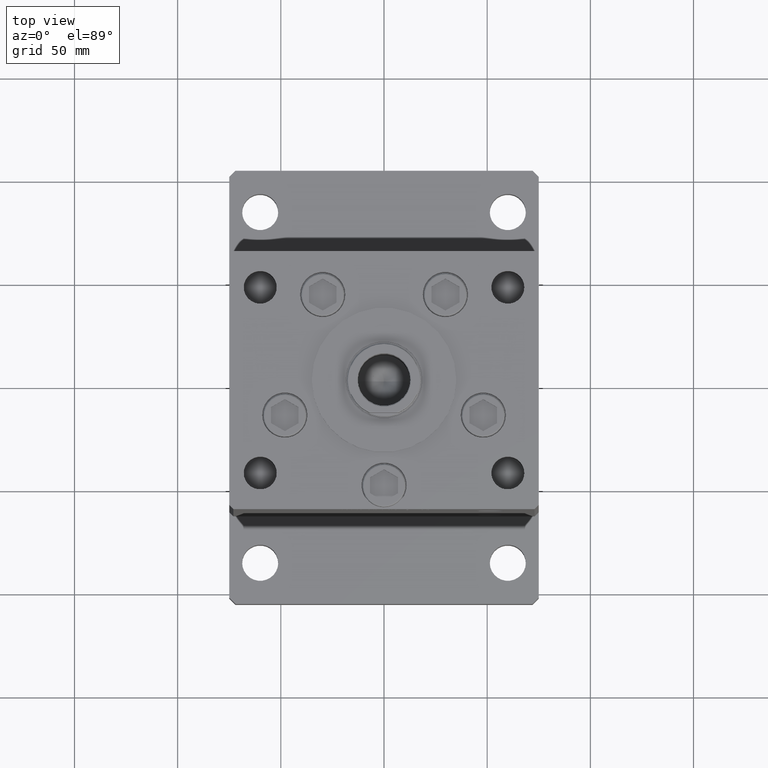
[diagram: clean part render]
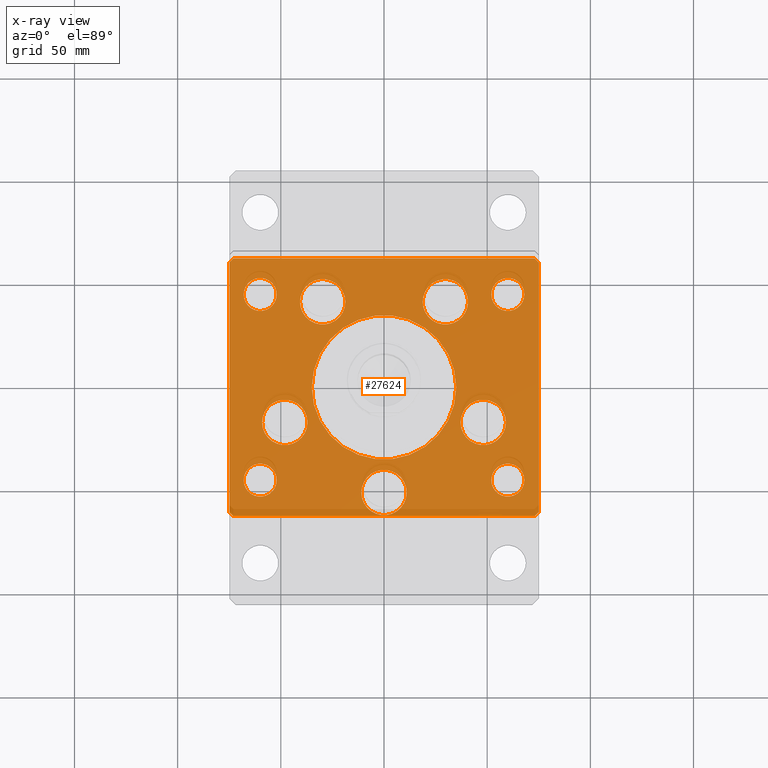
[diagram: x-ray — body ghosted, one internal face saturated and labeled with its STEP entity id]
A machine part, top view, then the same camera in x-ray: the body is ghosted and one INTERNAL B-rep face — a face not visible from any outside direction — is saturated and labeled: STEP entity #27624.
In plain terms, the highlighted planar face has unit normal (0, 0, -1).
Its self-contained STEP definition (entity closure, byte-faithful):
#9 = CARTESIAN_POINT ( 'NONE',  ( 74.99999999999992895, 60.50000000000002842, 0.000000000000000000 ) ) ;
#86 = EDGE_CURVE ( 'NONE', #8940, #32262, #29448, .T. ) ;
#288 = DIRECTION ( 'NONE',  ( 0.000000000000000000, -1.000000000000000000, 0.000000000000000000 ) ) ;
#441 = AXIS2_PLACEMENT_3D ( 'NONE', #41376, #50024, #33759 ) ;
#675 = DIRECTION ( 'NONE',  ( -0.000000000000000000, 0.000000000000000000, 1.000000000000000000 ) ) ;
#1005 = CIRCLE ( 'NONE', #24294, 10.99999999999999645 ) ;
#1025 = CARTESIAN_POINT ( 'NONE',  ( -29.73102073172060500, 41.43749999999998579, 0.000000000000000000 ) ) ;
#1263 = ORIENTED_EDGE ( 'NONE', *, *, #33752, .T. ) ;
#1478 = AXIS2_PLACEMENT_3D ( 'NONE', #26942, #23685, #39961 ) ;
#1541 = EDGE_CURVE ( 'NONE', #23959, #45111, #9569, .T. ) ;
#1725 = VERTEX_POINT ( 'NONE', #40187 ) ;
#1927 = VERTEX_POINT ( 'NONE', #18434 ) ;
#1978 = VERTEX_POINT ( 'NONE', #28186 ) ;
#2099 = EDGE_LOOP ( 'NONE', ( #32290, #15191 ) ) ;
#2299 = DIRECTION ( 'NONE',  ( 1.000000000000000000, 0.000000000000000000, 0.000000000000000000 ) ) ;
#2541 = VERTEX_POINT ( 'NONE', #25925 ) ;
#2713 = CARTESIAN_POINT ( 'NONE',  ( 48.08326112068522207, -16.99999999999999645, 0.000000000000000000 ) ) ;
#2765 = FACE_BOUND ( 'NONE', #26842, .T. ) ;
#2953 = ORIENTED_EDGE ( 'NONE', *, *, #24874, .T. ) ;
#3104 = VERTEX_POINT ( 'NONE', #35473 ) ;
#3172 = AXIS2_PLACEMENT_3D ( 'NONE', #43635, #27097, #14344 ) ;
#3273 = DIRECTION ( 'NONE',  ( 1.000000000000000000, 9.505334114941407284E-17, 0.000000000000000000 ) ) ;
#3325 = CARTESIAN_POINT ( 'NONE',  ( -59.99999999999999289, -45.00000000000000000, 0.000000000000000000 ) ) ;
#3358 = DIRECTION ( 'NONE',  ( 1.000000000000000000, 0.000000000000000000, 0.000000000000000000 ) ) ;
#3615 = VERTEX_POINT ( 'NONE', #9 ) ;
#3665 = EDGE_LOOP ( 'NONE', ( #22219, #10344 ) ) ;
#3743 = EDGE_CURVE ( 'NONE', #6756, #22187, #5308, .T. ) ;
#3855 = DIRECTION ( 'NONE',  ( 0.000000000000000000, -0.000000000000000000, -1.000000000000000000 ) ) ;
#4297 = ORIENTED_EDGE ( 'NONE', *, *, #44772, .T. ) ;
#4303 = EDGE_LOOP ( 'NONE', ( #9160, #11617 ) ) ;
#4401 = CARTESIAN_POINT ( 'NONE',  ( -52.00000000000000000, 45.00000000000000000, 0.000000000000000000 ) ) ;
#4786 = EDGE_CURVE ( 'NONE', #18617, #49133, #1005, .T. ) ;
#5157 = EDGE_CURVE ( 'NONE', #49009, #42917, #19090, .T. ) ;
#5308 = CIRCLE ( 'NONE', #11355, 11.00000000000000355 ) ;
#5531 = AXIS2_PLACEMENT_3D ( 'NONE', #2713, #22523, #48007 ) ;
#5624 = AXIS2_PLACEMENT_3D ( 'NONE', #52086, #31222, #35297 ) ;
#6075 = AXIS2_PLACEMENT_3D ( 'NONE', #51979, #47916, #10765 ) ;
#6756 = VERTEX_POINT ( 'NONE', #22951 ) ;
#7235 = CARTESIAN_POINT ( 'NONE',  ( -10.99999999999999289, -51.00000000000000000, 0.000000000000000000 ) ) ;
#7257 = VECTOR ( 'NONE', #43328, 1000.000000000000114 ) ;
#7286 = VERTEX_POINT ( 'NONE', #4401 ) ;
#7301 = DIRECTION ( 'NONE',  ( 0.000000000000000000, -0.000000000000000000, -1.000000000000000000 ) ) ;
#7656 = DIRECTION ( 'NONE',  ( 0.000000000000000000, -0.000000000000000000, -1.000000000000000000 ) ) ;
#7685 = ORIENTED_EDGE ( 'NONE', *, *, #36598, .T. ) ;
#7838 = CARTESIAN_POINT ( 'NONE',  ( 75.00000000000001421, -60.50000000000000711, 0.000000000000000000 ) ) ;
#8182 = DIRECTION ( 'NONE',  ( 1.000000000000000000, 0.000000000000000000, 0.000000000000000000 ) ) ;
#8603 = DIRECTION ( 'NONE',  ( 1.000000000000000000, 0.000000000000000000, 0.000000000000000000 ) ) ;
#8645 = DIRECTION ( 'NONE',  ( 0.7071067811865463515, 0.7071067811865487940, 0.000000000000000000 ) ) ;
#8745 = VERTEX_POINT ( 'NONE', #30051 ) ;
#8940 = VERTEX_POINT ( 'NONE', #26145 ) ;
#9035 = CIRCLE ( 'NONE', #41938, 8.000000000000000000 ) ;
#9160 = ORIENTED_EDGE ( 'NONE', *, *, #10292, .F. ) ;
#9569 = CIRCLE ( 'NONE', #13017, 11.00000000000000000 ) ;
#10217 = ORIENTED_EDGE ( 'NONE', *, *, #19425, .T. ) ;
#10292 = EDGE_CURVE ( 'NONE', #7286, #45808, #50383, .T. ) ;
#10344 = ORIENTED_EDGE ( 'NONE', *, *, #4786, .T. ) ;
#10422 = DIRECTION ( 'NONE',  ( 0.000000000000000000, -0.000000000000000000, -1.000000000000000000 ) ) ;
#10762 = DIRECTION ( 'NONE',  ( 1.000000000000000000, 0.000000000000000000, 0.000000000000000000 ) ) ;
#10765 = DIRECTION ( 'NONE',  ( 1.000000000000000000, 0.000000000000000000, 0.000000000000000000 ) ) ;
#10820 = CIRCLE ( 'NONE', #441, 11.00000000000000355 ) ;
#10949 = EDGE_LOOP ( 'NONE', ( #22753, #10217 ) ) ;
#11065 = CIRCLE ( 'NONE', #24078, 35.00000000000000711 ) ;
#11182 = FACE_OUTER_BOUND ( 'NONE', #14331, .T. ) ;
#11245 = CARTESIAN_POINT ( 'NONE',  ( 68.00000000000000000, -44.99999999999999289, 0.000000000000000000 ) ) ;
#11337 = ORIENTED_EDGE ( 'NONE', *, *, #5157, .F. ) ;
#11355 = AXIS2_PLACEMENT_3D ( 'NONE', #41769, #21170, #37716 ) ;
#11439 = CARTESIAN_POINT ( 'NONE',  ( -73.00000000000001421, 62.49999999999998579, 0.000000000000000000 ) ) ;
#11557 = DIRECTION ( 'NONE',  ( 0.000000000000000000, 0.000000000000000000, 1.000000000000000000 ) ) ;
#11617 = ORIENTED_EDGE ( 'NONE', *, *, #42392, .F. ) ;
#11716 = FACE_BOUND ( 'NONE', #2099, .T. ) ;
#11907 = CIRCLE ( 'NONE', #1478, 35.00000000000000711 ) ;
#12173 = CARTESIAN_POINT ( 'NONE',  ( -51.99999999999999289, -45.00000000000000000, 0.000000000000000000 ) ) ;
#12548 = LINE ( 'NONE', #49952, #21430 ) ;
#12602 = VERTEX_POINT ( 'NONE', #53068 ) ;
#12871 = DIRECTION ( 'NONE',  ( -0.7071067811865451302, -0.7071067811865500152, 0.000000000000000000 ) ) ;
#12981 = EDGE_CURVE ( 'NONE', #32262, #8940, #33180, .T. ) ;
#13017 = AXIS2_PLACEMENT_3D ( 'NONE', #51293, #26635, #14152 ) ;
#13506 = ORIENTED_EDGE ( 'NONE', *, *, #45323, .T. ) ;
#13920 = CARTESIAN_POINT ( 'NONE',  ( -48.08326112068522207, -17.00000000000000711, 0.000000000000000000 ) ) ;
#14016 = CARTESIAN_POINT ( 'NONE',  ( 68.00000000000000000, 44.99999999999999289, 0.000000000000000000 ) ) ;
#14067 = VERTEX_POINT ( 'NONE', #11245 ) ;
#14152 = DIRECTION ( 'NONE',  ( 1.000000000000000000, 0.000000000000000000, 0.000000000000000000 ) ) ;
#14247 = VECTOR ( 'NONE', #3273, 1000.000000000000000 ) ;
#14331 = EDGE_LOOP ( 'NONE', ( #53060, #14519, #2953, #1263, #7685, #50451, #13506, #52334 ) ) ;
#14344 = DIRECTION ( 'NONE',  ( 1.000000000000000000, 0.000000000000000000, 0.000000000000000000 ) ) ;
#14381 = AXIS2_PLACEMENT_3D ( 'NONE', #1025, #51987, #27322 ) ;
#14519 = ORIENTED_EDGE ( 'NONE', *, *, #38395, .T. ) ;
#15191 = ORIENTED_EDGE ( 'NONE', *, *, #31675, .F. ) ;
#15290 = ORIENTED_EDGE ( 'NONE', *, *, #16912, .T. ) ;
#15588 = DIRECTION ( 'NONE',  ( 0.000000000000000000, -0.000000000000000000, -1.000000000000000000 ) ) ;
#15632 = DIRECTION ( 'NONE',  ( 1.000000000000000000, 0.000000000000000000, 0.000000000000000000 ) ) ;
#15914 = CIRCLE ( 'NONE', #23737, 11.00000000000000000 ) ;
#16338 = EDGE_CURVE ( 'NONE', #43621, #1725, #15914, .T. ) ;
#16736 = DIRECTION ( 'NONE',  ( 0.000000000000000000, -0.000000000000000000, -1.000000000000000000 ) ) ;
#16912 = EDGE_CURVE ( 'NONE', #22187, #6756, #48809, .T. ) ;
#17056 = LINE ( 'NONE', #33589, #33402 ) ;
#17059 = ORIENTED_EDGE ( 'NONE', *, *, #12981, .T. ) ;
#17592 = CIRCLE ( 'NONE', #44472, 11.00000000000000000 ) ;
#17751 = CIRCLE ( 'NONE', #5624, 8.000000000000007105 ) ;
#18074 = EDGE_CURVE ( 'NONE', #49133, #18617, #25481, .T. ) ;
#18192 = DIRECTION ( 'NONE',  ( 0.000000000000000000, -0.000000000000000000, -1.000000000000000000 ) ) ;
#18434 = CARTESIAN_POINT ( 'NONE',  ( -73.00000000000001421, -62.50000000000002842, 0.000000000000000000 ) ) ;
#18591 = CARTESIAN_POINT ( 'NONE',  ( 35.00000000000000711, -1.387778780781445676E-14, 0.000000000000000000 ) ) ;
#18617 = VERTEX_POINT ( 'NONE', #35019 ) ;
#18633 = ORIENTED_EDGE ( 'NONE', *, *, #32411, .F. ) ;
#18738 = ORIENTED_EDGE ( 'NONE', *, *, #27182, .T. ) ;
#19090 = CIRCLE ( 'NONE', #6075, 8.000000000000007105 ) ;
#19241 = LINE ( 'NONE', #7838, #47864 ) ;
#19425 = EDGE_CURVE ( 'NONE', #1978, #8745, #19468, .T. ) ;
#19468 = CIRCLE ( 'NONE', #34221, 11.00000000000000355 ) ;
#19621 = CIRCLE ( 'NONE', #14381, 11.00000000000000000 ) ;
#20214 = ORIENTED_EDGE ( 'NONE', *, *, #40318, .T. ) ;
#21008 = CARTESIAN_POINT ( 'NONE',  ( -73.00000000000001421, 62.49999999999998579, 0.000000000000000000 ) ) ;
#21036 = AXIS2_PLACEMENT_3D ( 'NONE', #3325, #3855, #45089 ) ;
#21170 = DIRECTION ( 'NONE',  ( 0.000000000000000000, -0.000000000000000000, -1.000000000000000000 ) ) ;
#21422 = CARTESIAN_POINT ( 'NONE',  ( 73.00000000000001421, -62.50000000000001421, 0.000000000000000000 ) ) ;
#21430 = VECTOR ( 'NONE', #49163, 1000.000000000000000 ) ;
#21486 = VECTOR ( 'NONE', #28425, 1000.000000000000114 ) ;
#22187 = VERTEX_POINT ( 'NONE', #44077 ) ;
#22219 = ORIENTED_EDGE ( 'NONE', *, *, #18074, .T. ) ;
#22523 = DIRECTION ( 'NONE',  ( 0.000000000000000000, -0.000000000000000000, -1.000000000000000000 ) ) ;
#22753 = ORIENTED_EDGE ( 'NONE', *, *, #40680, .T. ) ;
#22951 = CARTESIAN_POINT ( 'NONE',  ( 37.08326112068521496, -16.99999999999999645, 0.000000000000000000 ) ) ;
#23307 = EDGE_LOOP ( 'NONE', ( #52620, #18738 ) ) ;
#23393 = FACE_BOUND ( 'NONE', #10949, .T. ) ;
#23445 = CARTESIAN_POINT ( 'NONE',  ( -59.99999999999999289, -45.00000000000000000, 0.000000000000000000 ) ) ;
#23531 = CARTESIAN_POINT ( 'NONE',  ( 74.99999999999992895, 60.50000000000002842, 0.000000000000000000 ) ) ;
#23655 = FACE_BOUND ( 'NONE', #35768, .T. ) ;
#23685 = DIRECTION ( 'NONE',  ( 0.000000000000000000, 0.000000000000000000, 1.000000000000000000 ) ) ;
#23737 = AXIS2_PLACEMENT_3D ( 'NONE', #38803, #18192, #30665 ) ;
#23784 = DIRECTION ( 'NONE',  ( -0.000000000000000000, 0.000000000000000000, 1.000000000000000000 ) ) ;
#23959 = VERTEX_POINT ( 'NONE', #30604 ) ;
#24078 = AXIS2_PLACEMENT_3D ( 'NONE', #44654, #11557, #15632 ) ;
#24128 = DIRECTION ( 'NONE',  ( -6.881547673296424104E-16, 1.000000000000000000, 0.000000000000000000 ) ) ;
#24202 = FACE_BOUND ( 'NONE', #4303, .T. ) ;
#24294 = AXIS2_PLACEMENT_3D ( 'NONE', #44461, #7301, #27654 ) ;
#24874 = EDGE_CURVE ( 'NONE', #50213, #29350, #17056, .T. ) ;
#25249 = DIRECTION ( 'NONE',  ( -0.000000000000000000, 0.000000000000000000, 1.000000000000000000 ) ) ;
#25371 = DIRECTION ( 'NONE',  ( 1.000000000000000000, 0.000000000000000000, 0.000000000000000000 ) ) ;
#25481 = CIRCLE ( 'NONE', #28065, 10.99999999999999645 ) ;
#25925 = CARTESIAN_POINT ( 'NONE',  ( 72.99999999999992895, 62.50000000000001421, 0.000000000000000000 ) ) ;
#26145 = CARTESIAN_POINT ( 'NONE',  ( -67.99999999999998579, -45.00000000000000000, 0.000000000000000000 ) ) ;
#26635 = DIRECTION ( 'NONE',  ( 0.000000000000000000, -0.000000000000000000, -1.000000000000000000 ) ) ;
#26802 = VERTEX_POINT ( 'NONE', #11439 ) ;
#26834 = EDGE_CURVE ( 'NONE', #3104, #42325, #49648, .T. ) ;
#26842 = EDGE_LOOP ( 'NONE', ( #18633, #11337 ) ) ;
#26942 = CARTESIAN_POINT ( 'NONE',  ( 0.000000000000000000, -1.387778780781445676E-14, 0.000000000000000000 ) ) ;
#27097 = DIRECTION ( 'NONE',  ( -0.000000000000000000, 0.000000000000000000, 1.000000000000000000 ) ) ;
#27182 = EDGE_CURVE ( 'NONE', #45111, #23959, #19621, .T. ) ;
#27322 = DIRECTION ( 'NONE',  ( 1.000000000000000000, 0.000000000000000000, 0.000000000000000000 ) ) ;
#27527 = CARTESIAN_POINT ( 'NONE',  ( 6.245698675651500444E-15, -51.00000000000000000, 0.000000000000000000 ) ) ;
#27624 = ADVANCED_FACE ( 'NONE', ( #11716, #27986, #36674, #28260, #23655, #23393, #2765, #44809, #24202, #11182, #40196 ), #44272, .T. ) ;
#27654 = DIRECTION ( 'NONE',  ( 1.000000000000000000, 0.000000000000000000, 0.000000000000000000 ) ) ;
#27986 = FACE_BOUND ( 'NONE', #23307, .T. ) ;
#28065 = AXIS2_PLACEMENT_3D ( 'NONE', #46292, #16736, #8603 ) ;
#28090 = CARTESIAN_POINT ( 'NONE',  ( 18.73102073172060500, 41.43749999999999289, 0.000000000000000000 ) ) ;
#28186 = CARTESIAN_POINT ( 'NONE',  ( -37.08326112068521496, -17.00000000000000711, 0.000000000000000000 ) ) ;
#28260 = FACE_BOUND ( 'NONE', #53122, .T. ) ;
#28425 = DIRECTION ( 'NONE',  ( 0.7071067811865451302, -0.7071067811865500152, 0.000000000000000000 ) ) ;
#28900 = VERTEX_POINT ( 'NONE', #18591 ) ;
#29350 = VERTEX_POINT ( 'NONE', #33931 ) ;
#29448 = CIRCLE ( 'NONE', #51047, 8.000000000000000000 ) ;
#30051 = CARTESIAN_POINT ( 'NONE',  ( -59.08326112068522207, -17.00000000000000711, 0.000000000000000000 ) ) ;
#30583 = EDGE_CURVE ( 'NONE', #42325, #1927, #48757, .T. ) ;
#30604 = CARTESIAN_POINT ( 'NONE',  ( -40.73102073172060500, 41.43749999999998579, 0.000000000000000000 ) ) ;
#30665 = DIRECTION ( 'NONE',  ( 1.000000000000000000, 0.000000000000000000, 0.000000000000000000 ) ) ;
#30772 = CARTESIAN_POINT ( 'NONE',  ( -75.00000000000001421, -60.50000000000001421, 0.000000000000000000 ) ) ;
#31222 = DIRECTION ( 'NONE',  ( 0.000000000000000000, -0.000000000000000000, -1.000000000000000000 ) ) ;
#31653 = VECTOR ( 'NONE', #12871, 1000.000000000000114 ) ;
#31675 = EDGE_CURVE ( 'NONE', #12602, #28900, #11065, .T. ) ;
#32262 = VERTEX_POINT ( 'NONE', #12173 ) ;
#32290 = ORIENTED_EDGE ( 'NONE', *, *, #50538, .F. ) ;
#32411 = EDGE_CURVE ( 'NONE', #42917, #49009, #33633, .T. ) ;
#33180 = CIRCLE ( 'NONE', #21036, 8.000000000000000000 ) ;
#33402 = VECTOR ( 'NONE', #8645, 1000.000000000000000 ) ;
#33501 = CARTESIAN_POINT ( 'NONE',  ( -60.00000000000000000, 45.00000000000000000, 0.000000000000000000 ) ) ;
#33589 = CARTESIAN_POINT ( 'NONE',  ( 73.00000000000001421, -62.50000000000001421, 0.000000000000000000 ) ) ;
#33626 = ORIENTED_EDGE ( 'NONE', *, *, #86, .T. ) ;
#33633 = CIRCLE ( 'NONE', #39670, 8.000000000000007105 ) ;
#33752 = EDGE_CURVE ( 'NONE', #29350, #3615, #19241, .T. ) ;
#33759 = DIRECTION ( 'NONE',  ( 1.000000000000000000, 0.000000000000000000, 0.000000000000000000 ) ) ;
#33931 = CARTESIAN_POINT ( 'NONE',  ( 75.00000000000001421, -60.50000000000000711, 0.000000000000000000 ) ) ;
#34221 = AXIS2_PLACEMENT_3D ( 'NONE', #13920, #51606, #42949 ) ;
#34391 = ORIENTED_EDGE ( 'NONE', *, *, #16338, .T. ) ;
#35019 = CARTESIAN_POINT ( 'NONE',  ( 40.73102073172059079, 41.43749999999999289, 0.000000000000000000 ) ) ;
#35286 = EDGE_CURVE ( 'NONE', #1725, #43621, #17592, .T. ) ;
#35297 = DIRECTION ( 'NONE',  ( 1.000000000000000000, 0.000000000000000000, 0.000000000000000000 ) ) ;
#35473 = CARTESIAN_POINT ( 'NONE',  ( -75.00000000000001421, 60.49999999999997158, 0.000000000000000000 ) ) ;
#35750 = CARTESIAN_POINT ( 'NONE',  ( 51.99999999999999289, -44.99999999999999289, 0.000000000000000000 ) ) ;
#35768 = EDGE_LOOP ( 'NONE', ( #34391, #52836 ) ) ;
#36598 = EDGE_CURVE ( 'NONE', #3615, #2541, #43879, .T. ) ;
#36674 = FACE_BOUND ( 'NONE', #3665, .T. ) ;
#36957 = CARTESIAN_POINT ( 'NONE',  ( 60.00000000000000000, -44.99999999999999289, 0.000000000000000000 ) ) ;
#37590 = VERTEX_POINT ( 'NONE', #35750 ) ;
#37716 = DIRECTION ( 'NONE',  ( 1.000000000000000000, 0.000000000000000000, 0.000000000000000000 ) ) ;
#38025 = CARTESIAN_POINT ( 'NONE',  ( -67.99999999999998579, 45.00000000000000000, 0.000000000000000000 ) ) ;
#38232 = ORIENTED_EDGE ( 'NONE', *, *, #3743, .T. ) ;
#38395 = EDGE_CURVE ( 'NONE', #1927, #50213, #44233, .T. ) ;
#38803 = CARTESIAN_POINT ( 'NONE',  ( 6.245698675651500444E-15, -51.00000000000000000, 0.000000000000000000 ) ) ;
#39670 = AXIS2_PLACEMENT_3D ( 'NONE', #47914, #23784, #10762 ) ;
#39961 = DIRECTION ( 'NONE',  ( 1.000000000000000000, 0.000000000000000000, 0.000000000000000000 ) ) ;
#40187 = CARTESIAN_POINT ( 'NONE',  ( 11.00000000000000711, -51.00000000000000000, 0.000000000000000000 ) ) ;
#40196 = FACE_BOUND ( 'NONE', #40556, .T. ) ;
#40318 = EDGE_CURVE ( 'NONE', #14067, #37590, #17751, .T. ) ;
#40556 = EDGE_LOOP ( 'NONE', ( #17059, #33626 ) ) ;
#40680 = EDGE_CURVE ( 'NONE', #8745, #1978, #10820, .T. ) ;
#40784 = CARTESIAN_POINT ( 'NONE',  ( -60.00000000000000000, 45.00000000000000000, 0.000000000000000000 ) ) ;
#41170 = AXIS2_PLACEMENT_3D ( 'NONE', #36957, #7656, #8182 ) ;
#41376 = CARTESIAN_POINT ( 'NONE',  ( -48.08326112068522207, -17.00000000000000711, 0.000000000000000000 ) ) ;
#41769 = CARTESIAN_POINT ( 'NONE',  ( 48.08326112068522207, -16.99999999999999645, 0.000000000000000000 ) ) ;
#41938 = AXIS2_PLACEMENT_3D ( 'NONE', #40784, #25249, #3358 ) ;
#42325 = VERTEX_POINT ( 'NONE', #30772 ) ;
#42392 = EDGE_CURVE ( 'NONE', #45808, #7286, #9035, .T. ) ;
#42917 = VERTEX_POINT ( 'NONE', #14016 ) ;
#42949 = DIRECTION ( 'NONE',  ( 1.000000000000000000, 0.000000000000000000, 0.000000000000000000 ) ) ;
#43328 = DIRECTION ( 'NONE',  ( -0.7071067811865500152, 0.7071067811865451302, 0.000000000000000000 ) ) ;
#43621 = VERTEX_POINT ( 'NONE', #7235 ) ;
#43635 = CARTESIAN_POINT ( 'NONE',  ( 0.000000000000000000, 0.000000000000000000, 0.000000000000000000 ) ) ;
#43879 = LINE ( 'NONE', #23531, #7257 ) ;
#44077 = CARTESIAN_POINT ( 'NONE',  ( 59.08326112068522207, -16.99999999999999645, 0.000000000000000000 ) ) ;
#44233 = LINE ( 'NONE', #48817, #14247 ) ;
#44272 = PLANE ( 'NONE',  #3172 ) ;
#44461 = CARTESIAN_POINT ( 'NONE',  ( 29.73102073172059789, 41.43749999999999289, 0.000000000000000000 ) ) ;
#44472 = AXIS2_PLACEMENT_3D ( 'NONE', #27527, #15588, #2299 ) ;
#44654 = CARTESIAN_POINT ( 'NONE',  ( 0.000000000000000000, -1.387778780781445676E-14, 0.000000000000000000 ) ) ;
#44708 = CARTESIAN_POINT ( 'NONE',  ( -75.00000000000001421, -60.50000000000001421, 0.000000000000000000 ) ) ;
#44772 = EDGE_CURVE ( 'NONE', #37590, #14067, #46358, .T. ) ;
#44809 = FACE_BOUND ( 'NONE', #47437, .T. ) ;
#45070 = CARTESIAN_POINT ( 'NONE',  ( -75.00000000000001421, 60.49999999999997158, 0.000000000000000000 ) ) ;
#45089 = DIRECTION ( 'NONE',  ( 1.000000000000000000, 0.000000000000000000, 0.000000000000000000 ) ) ;
#45111 = VERTEX_POINT ( 'NONE', #49605 ) ;
#45323 = EDGE_CURVE ( 'NONE', #26802, #3104, #53010, .T. ) ;
#45808 = VERTEX_POINT ( 'NONE', #38025 ) ;
#46292 = CARTESIAN_POINT ( 'NONE',  ( 29.73102073172059789, 41.43749999999999289, 0.000000000000000000 ) ) ;
#46358 = CIRCLE ( 'NONE', #41170, 8.000000000000007105 ) ;
#47329 = VECTOR ( 'NONE', #288, 1000.000000000000000 ) ;
#47437 = EDGE_LOOP ( 'NONE', ( #20214, #4297 ) ) ;
#47864 = VECTOR ( 'NONE', #24128, 1000.000000000000000 ) ;
#47914 = CARTESIAN_POINT ( 'NONE',  ( 60.00000000000000000, 44.99999999999999289, 0.000000000000000000 ) ) ;
#47916 = DIRECTION ( 'NONE',  ( -0.000000000000000000, 0.000000000000000000, 1.000000000000000000 ) ) ;
#48007 = DIRECTION ( 'NONE',  ( 1.000000000000000000, 0.000000000000000000, 0.000000000000000000 ) ) ;
#48757 = LINE ( 'NONE', #44708, #21486 ) ;
#48809 = CIRCLE ( 'NONE', #5531, 11.00000000000000355 ) ;
#48817 = CARTESIAN_POINT ( 'NONE',  ( -73.00000000000001421, -62.50000000000002842, 0.000000000000000000 ) ) ;
#49009 = VERTEX_POINT ( 'NONE', #51782 ) ;
#49133 = VERTEX_POINT ( 'NONE', #28090 ) ;
#49163 = DIRECTION ( 'NONE',  ( -1.000000000000000000, -1.901066822988282689E-16, 0.000000000000000000 ) ) ;
#49605 = CARTESIAN_POINT ( 'NONE',  ( -18.73102073172060500, 41.43749999999998579, 0.000000000000000000 ) ) ;
#49648 = LINE ( 'NONE', #45070, #47329 ) ;
#49952 = CARTESIAN_POINT ( 'NONE',  ( 72.99999999999992895, 62.50000000000001421, 0.000000000000000000 ) ) ;
#50024 = DIRECTION ( 'NONE',  ( 0.000000000000000000, -0.000000000000000000, -1.000000000000000000 ) ) ;
#50213 = VERTEX_POINT ( 'NONE', #21422 ) ;
#50383 = CIRCLE ( 'NONE', #51231, 8.000000000000000000 ) ;
#50451 = ORIENTED_EDGE ( 'NONE', *, *, #50742, .T. ) ;
#50538 = EDGE_CURVE ( 'NONE', #28900, #12602, #11907, .T. ) ;
#50742 = EDGE_CURVE ( 'NONE', #2541, #26802, #12548, .T. ) ;
#51047 = AXIS2_PLACEMENT_3D ( 'NONE', #23445, #10422, #52717 ) ;
#51231 = AXIS2_PLACEMENT_3D ( 'NONE', #33501, #675, #25371 ) ;
#51293 = CARTESIAN_POINT ( 'NONE',  ( -29.73102073172060500, 41.43749999999998579, 0.000000000000000000 ) ) ;
#51606 = DIRECTION ( 'NONE',  ( 0.000000000000000000, -0.000000000000000000, -1.000000000000000000 ) ) ;
#51782 = CARTESIAN_POINT ( 'NONE',  ( 51.99999999999999289, 44.99999999999999289, 0.000000000000000000 ) ) ;
#51979 = CARTESIAN_POINT ( 'NONE',  ( 60.00000000000000000, 44.99999999999999289, 0.000000000000000000 ) ) ;
#51987 = DIRECTION ( 'NONE',  ( 0.000000000000000000, -0.000000000000000000, -1.000000000000000000 ) ) ;
#52086 = CARTESIAN_POINT ( 'NONE',  ( 60.00000000000000000, -44.99999999999999289, 0.000000000000000000 ) ) ;
#52334 = ORIENTED_EDGE ( 'NONE', *, *, #26834, .T. ) ;
#52620 = ORIENTED_EDGE ( 'NONE', *, *, #1541, .T. ) ;
#52717 = DIRECTION ( 'NONE',  ( 1.000000000000000000, 0.000000000000000000, 0.000000000000000000 ) ) ;
#52836 = ORIENTED_EDGE ( 'NONE', *, *, #35286, .T. ) ;
#53010 = LINE ( 'NONE', #21008, #31653 ) ;
#53060 = ORIENTED_EDGE ( 'NONE', *, *, #30583, .T. ) ;
#53068 = CARTESIAN_POINT ( 'NONE',  ( -35.00000000000000711, -9.591524010798718681E-15, 0.000000000000000000 ) ) ;
#53122 = EDGE_LOOP ( 'NONE', ( #38232, #15290 ) ) ;